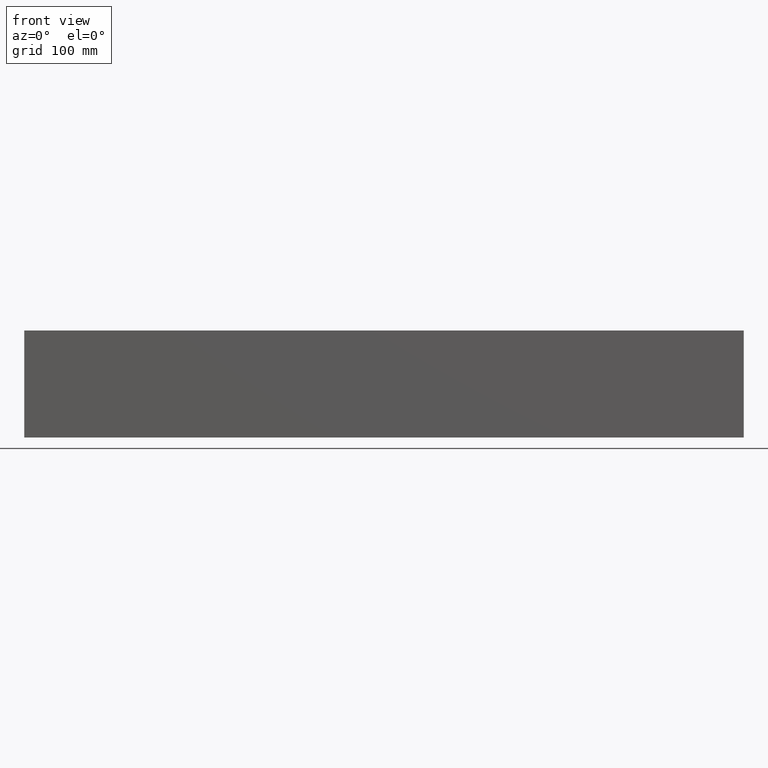
[diagram: clean part render]
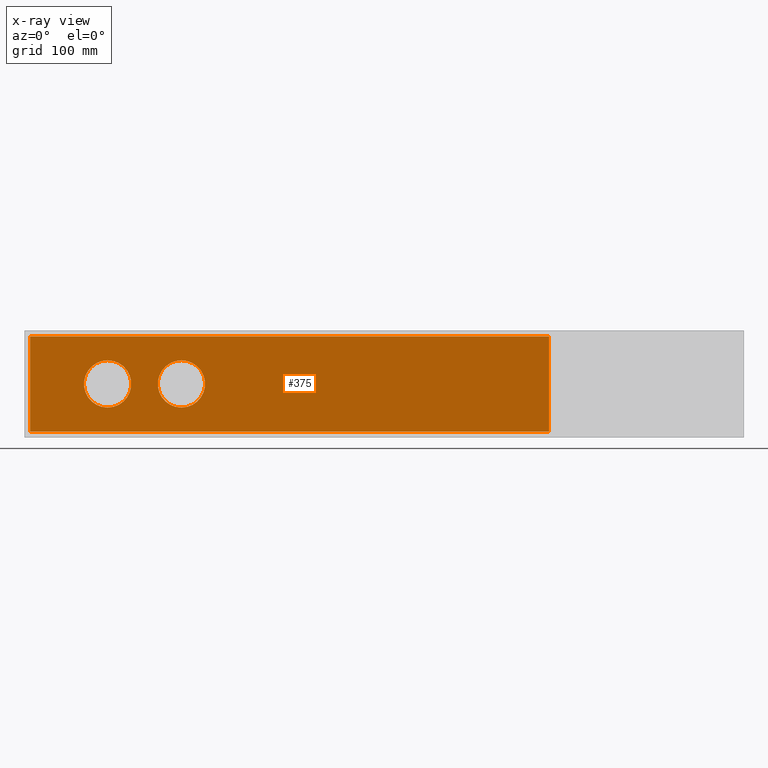
[diagram: x-ray — body ghosted, one internal face saturated and labeled with its STEP entity id]
A machine part, front view, then the same camera in x-ray: the body is ghosted and one INTERNAL B-rep face — a face not visible from any outside direction — is saturated and labeled: STEP entity #375.
In plain terms, the highlighted planar face has unit normal (0, -1, -0).
Its self-contained STEP definition (entity closure, byte-faithful):
#7 = DIRECTION ( 'NONE',  ( 0.0000000000000000000, 0.0000000000000000000, -1.000000000000000000 ) ) ;
#8 = DIRECTION ( 'NONE',  ( -0.0000000000000000000, 1.000000000000000000, 2.151595008963482778E-16 ) ) ;
#9 = CARTESIAN_POINT ( 'NONE',  ( 113.0000000000000142, 94.99999999999998579, 72.49999999999998579 ) ) ;
#15 = VECTOR ( 'NONE', #444, 1000.000000000000000 ) ;
#16 = DIRECTION ( 'NONE',  ( 0.0000000000000000000, 0.0000000000000000000, -1.000000000000000000 ) ) ;
#17 = DIRECTION ( 'NONE',  ( -0.0000000000000000000, 1.000000000000000000, 2.151595008963482778E-16 ) ) ;
#18 = CARTESIAN_POINT ( 'NONE',  ( 213.0000000000000284, 94.99999999999998579, 72.49999999999998579 ) ) ;
#90 = CIRCLE ( 'NONE', #634, 31.99999999999999289 ) ;
#135 = CARTESIAN_POINT ( 'NONE',  ( 8.000000000000007105, 94.99999999999997158, 136.9999999999999432 ) ) ;
#180 = CIRCLE ( 'NONE', #539, 31.99999999999999289 ) ;
#209 = DIRECTION ( 'NONE',  ( 0.0000000000000000000, 0.0000000000000000000, -1.000000000000000000 ) ) ;
#211 = DIRECTION ( 'NONE',  ( -0.0000000000000000000, 1.000000000000000000, 2.151595008963482778E-16 ) ) ;
#212 = CARTESIAN_POINT ( 'NONE',  ( 113.0000000000000142, 94.99999999999998579, 72.49999999999998579 ) ) ;
#320 = DIRECTION ( 'NONE',  ( -1.000000000000000000, -0.0000000000000000000, -0.0000000000000000000 ) ) ;
#321 = CARTESIAN_POINT ( 'NONE',  ( 975.0000000000000000, 95.00000000000000000, 8.000000000000000000 ) ) ;
#323 = LINE ( 'NONE', #321, #666 ) ;
#350 = EDGE_CURVE ( 'NONE', #1149, #741, #447, .T. ) ;
#361 = CIRCLE ( 'NONE', #1219, 31.99999999999999289 ) ;
#368 = EDGE_CURVE ( 'NONE', #741, #536, #415, .T. ) ;
#375 = ADVANCED_FACE ( 'NONE', ( #392, #389, #387 ), #386, .T. ) ;
#379 = DIRECTION ( 'NONE',  ( 0.0000000000000000000, 2.151595008963482778E-16, -1.000000000000000000 ) ) ;
#382 = DIRECTION ( 'NONE',  ( 0.0000000000000000000, -1.000000000000000000, -2.151595008963482778E-16 ) ) ;
#384 = CARTESIAN_POINT ( 'NONE',  ( 975.0000000000000000, 95.00000000000000000, 8.000000000000000000 ) ) ;
#386 = PLANE ( 'NONE',  #650 ) ;
#387 = FACE_BOUND ( 'NONE', #1137, .T. ) ;
#389 = FACE_BOUND ( 'NONE', #851, .T. ) ;
#392 = FACE_OUTER_BOUND ( 'NONE', #623, .T. ) ;
#408 = DIRECTION ( 'NONE',  ( -1.000000000000000000, -0.0000000000000000000, -0.0000000000000000000 ) ) ;
#409 = EDGE_CURVE ( 'NONE', #1149, #1462, #323, .T. ) ;
#410 = CARTESIAN_POINT ( 'NONE',  ( 975.0000000000000000, 94.99999999999997158, 136.9999999999999432 ) ) ;
#415 = LINE ( 'NONE', #410, #935 ) ;
#444 = DIRECTION ( 'NONE',  ( 0.0000000000000000000, 0.0000000000000000000, 1.000000000000000000 ) ) ;
#445 = CARTESIAN_POINT ( 'NONE',  ( 710.9999999999998863, 94.99999999999997158, -87.36704184073082047 ) ) ;
#447 = LINE ( 'NONE', #445, #15 ) ;
#474 = EDGE_CURVE ( 'NONE', #1293, #687, #90, .T. ) ;
#536 = VERTEX_POINT ( 'NONE', #135 ) ;
#539 = AXIS2_PLACEMENT_3D ( 'NONE', #18, #17, #16 ) ;
#562 = AXIS2_PLACEMENT_3D ( 'NONE', #1450, #1446, #1438 ) ;
#623 = EDGE_LOOP ( 'NONE', ( #829, #1287, #834, #968 ) ) ;
#634 = AXIS2_PLACEMENT_3D ( 'NONE', #212, #211, #209 ) ;
#650 = AXIS2_PLACEMENT_3D ( 'NONE', #384, #382, #379 ) ;
#657 = EDGE_CURVE ( 'NONE', #692, #674, #180, .T. ) ;
#661 = EDGE_CURVE ( 'NONE', #687, #1293, #361, .T. ) ;
#666 = VECTOR ( 'NONE', #320, 1000.000000000000000 ) ;
#674 = VERTEX_POINT ( 'NONE', #1552 ) ;
#687 = VERTEX_POINT ( 'NONE', #1544 ) ;
#692 = VERTEX_POINT ( 'NONE', #1540 ) ;
#702 = CIRCLE ( 'NONE', #562, 31.99999999999999289 ) ;
#716 = EDGE_CURVE ( 'NONE', #674, #692, #702, .T. ) ;
#741 = VERTEX_POINT ( 'NONE', #1416 ) ;
#829 = ORIENTED_EDGE ( 'NONE', *, *, #350, .T. ) ;
#834 = ORIENTED_EDGE ( 'NONE', *, *, #1441, .F. ) ;
#847 = CARTESIAN_POINT ( 'NONE',  ( 8.000000000000007105, 95.00000000000000000, 8.000000000000000000 ) ) ;
#851 = EDGE_LOOP ( 'NONE', ( #1017, #1003 ) ) ;
#871 = DIRECTION ( 'NONE',  ( 0.0000000000000000000, -2.151595008963482778E-16, 1.000000000000000000 ) ) ;
#872 = CARTESIAN_POINT ( 'NONE',  ( 8.000000000000007105, 95.00000000000000000, 8.000000000000000000 ) ) ;
#877 = LINE ( 'NONE', #872, #1351 ) ;
#935 = VECTOR ( 'NONE', #408, 1000.000000000000000 ) ;
#946 = CARTESIAN_POINT ( 'NONE',  ( 113.0000000000000142, 94.99999999999998579, 104.4999999999999858 ) ) ;
#968 = ORIENTED_EDGE ( 'NONE', *, *, #409, .F. ) ;
#1003 = ORIENTED_EDGE ( 'NONE', *, *, #661, .T. ) ;
#1017 = ORIENTED_EDGE ( 'NONE', *, *, #474, .T. ) ;
#1052 = CARTESIAN_POINT ( 'NONE',  ( 710.9999999999998863, 95.00000000000000000, 8.000000000000000000 ) ) ;
#1091 = ORIENTED_EDGE ( 'NONE', *, *, #716, .T. ) ;
#1137 = EDGE_LOOP ( 'NONE', ( #1091, #1281 ) ) ;
#1149 = VERTEX_POINT ( 'NONE', #1052 ) ;
#1219 = AXIS2_PLACEMENT_3D ( 'NONE', #9, #8, #7 ) ;
#1281 = ORIENTED_EDGE ( 'NONE', *, *, #657, .T. ) ;
#1287 = ORIENTED_EDGE ( 'NONE', *, *, #368, .T. ) ;
#1293 = VERTEX_POINT ( 'NONE', #946 ) ;
#1351 = VECTOR ( 'NONE', #871, 1000.000000000000000 ) ;
#1416 = CARTESIAN_POINT ( 'NONE',  ( 710.9999999999998863, 94.99999999999997158, 136.9999999999999432 ) ) ;
#1438 = DIRECTION ( 'NONE',  ( 0.0000000000000000000, 0.0000000000000000000, -1.000000000000000000 ) ) ;
#1441 = EDGE_CURVE ( 'NONE', #1462, #536, #877, .T. ) ;
#1446 = DIRECTION ( 'NONE',  ( -0.0000000000000000000, 1.000000000000000000, 2.151595008963482778E-16 ) ) ;
#1450 = CARTESIAN_POINT ( 'NONE',  ( 213.0000000000000284, 94.99999999999998579, 72.49999999999998579 ) ) ;
#1462 = VERTEX_POINT ( 'NONE', #847 ) ;
#1540 = CARTESIAN_POINT ( 'NONE',  ( 213.0000000000000284, 94.99999999999998579, 40.49999999999998579 ) ) ;
#1544 = CARTESIAN_POINT ( 'NONE',  ( 113.0000000000000142, 94.99999999999998579, 40.49999999999998579 ) ) ;
#1552 = CARTESIAN_POINT ( 'NONE',  ( 213.0000000000000284, 94.99999999999998579, 104.4999999999999858 ) ) ;